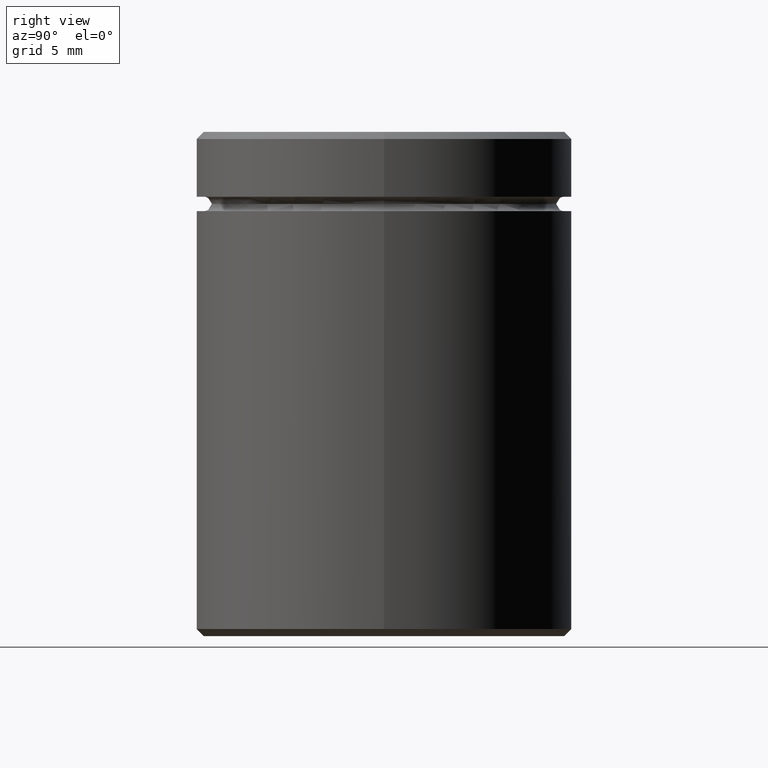
[diagram: clean part render]
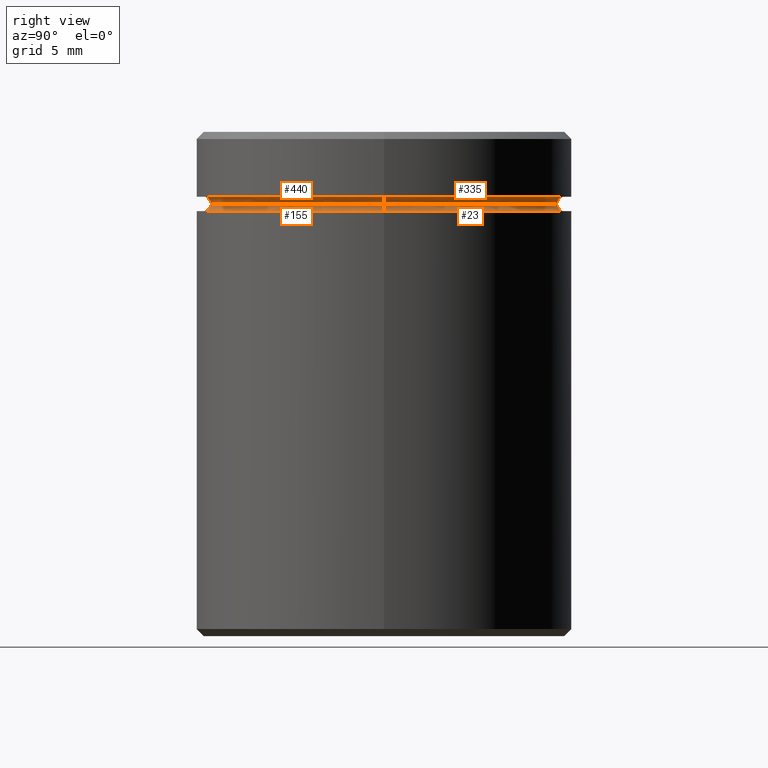
[diagram: same view with one multi-face feature highlighted, each face labeled with its STEP entity id]
A machine part, right view. The highlighted faces form ONE feature: a constant-radius fillet chain: 4 tangent blend faces with common blend radius 0.5 mm. The faces share edges in the B-rep.
Their STEP definitions:
[1] entity #335 (Torus):
#9 = DIRECTION ( 'NONE',  ( 1.000000000000000000, 0.000000000000000000, 0.000000000000000000 ) ) ;
#48 = EDGE_CURVE ( 'NONE', #435, #566, #424, .T. ) ;
#54 = CARTESIAN_POINT ( 'NONE',  ( 0.000000000000000000, 0.000000000000000000, -4.999999999999999112 ) ) ;
#62 = VERTEX_POINT ( 'NONE', #516 ) ;
#65 = DIRECTION ( 'NONE',  ( 0.000000000000000000, 0.000000000000000000, -1.000000000000000000 ) ) ;
#71 = DIRECTION ( 'NONE',  ( -1.000000000000000000, 0.000000000000000000, 0.000000000000000000 ) ) ;
#109 = DIRECTION ( 'NONE',  ( -0.000000000000000000, -0.000000000000000000, 1.000000000000000000 ) ) ;
#111 = ORIENTED_EDGE ( 'NONE', *, *, #167, .F. ) ;
#119 = DIRECTION ( 'NONE',  ( -0.000000000000000000, -1.000000000000000000, -0.000000000000000000 ) ) ;
#167 = EDGE_CURVE ( 'NONE', #62, #537, #308, .T. ) ;
#177 = EDGE_LOOP ( 'NONE', ( #346, #256, #274, #111 ) ) ;
#180 = AXIS2_PLACEMENT_3D ( 'NONE', #558, #337, #506 ) ;
#200 = CARTESIAN_POINT ( 'NONE',  ( 12.00000000000000000, 0.000000000000000000, -4.999999999999999112 ) ) ;
#226 = DIRECTION ( 'NONE',  ( -0.000000000000000000, -0.000000000000000000, 1.000000000000000000 ) ) ;
#227 = AXIS2_PLACEMENT_3D ( 'NONE', #499, #65, #237 ) ;
#230 = FACE_OUTER_BOUND ( 'NONE', #177, .T. ) ;
#237 = DIRECTION ( 'NONE',  ( -1.000000000000000000, 0.000000000000000000, 0.000000000000000000 ) ) ;
#256 = ORIENTED_EDGE ( 'NONE', *, *, #48, .T. ) ;
#261 = CARTESIAN_POINT ( 'NONE',  ( -12.50000000000000000, 0.000000000000000000, -4.500000000000000888 ) ) ;
#274 = ORIENTED_EDGE ( 'NONE', *, *, #384, .T. ) ;
#280 = TOROIDAL_SURFACE ( 'NONE', #227, 12.50000000000000000, 0.5000000000000000000 ) ;
#308 = CIRCLE ( 'NONE', #477, 12.50000000000000000 ) ;
#330 = CARTESIAN_POINT ( 'NONE',  ( -12.50000000000000000, 0.000000000000000000, -5.000000000000000888 ) ) ;
#334 = CARTESIAN_POINT ( 'NONE',  ( -12.00000000000000000, 1.500192328955507734E-15, -4.999999999999999112 ) ) ;
#335 = ADVANCED_FACE ( 'NONE', ( #230 ), #280, .F. ) ;
#337 = DIRECTION ( 'NONE',  ( -1.224646799147353207E-16, 1.000000000000000000, 0.000000000000000000 ) ) ;
#346 = ORIENTED_EDGE ( 'NONE', *, *, #377, .F. ) ;
#350 = AXIS2_PLACEMENT_3D ( 'NONE', #330, #119, #555 ) ;
#377 = EDGE_CURVE ( 'NONE', #435, #62, #528, .T. ) ;
#384 = EDGE_CURVE ( 'NONE', #566, #537, #416, .T. ) ;
#385 = AXIS2_PLACEMENT_3D ( 'NONE', #54, #226, #9 ) ;
#416 = CIRCLE ( 'NONE', #350, 0.5000000000000004441 ) ;
#424 = CIRCLE ( 'NONE', #385, 12.00000000000000000 ) ;
#435 = VERTEX_POINT ( 'NONE', #200 ) ;
#466 = CARTESIAN_POINT ( 'NONE',  ( 0.000000000000000000, 0.000000000000000000, -4.500000000000000888 ) ) ;
#477 = AXIS2_PLACEMENT_3D ( 'NONE', #466, #109, #71 ) ;
#499 = CARTESIAN_POINT ( 'NONE',  ( 0.000000000000000000, 0.000000000000000000, -5.000000000000000888 ) ) ;
#506 = DIRECTION ( 'NONE',  ( -1.000000000000000000, -1.224646799147353454E-16, 0.000000000000000000 ) ) ;
#516 = CARTESIAN_POINT ( 'NONE',  ( 12.50000000000000000, 1.530808498934191521E-15, -4.500000000000000888 ) ) ;
#528 = CIRCLE ( 'NONE', #180, 0.5000000000000004441 ) ;
#537 = VERTEX_POINT ( 'NONE', #261 ) ;
#555 = DIRECTION ( 'NONE',  ( 0.000000000000000000, 0.000000000000000000, -1.000000000000000000 ) ) ;
#558 = CARTESIAN_POINT ( 'NONE',  ( 12.50000000000000000, 1.530808498934191521E-15, -5.000000000000000888 ) ) ;
#566 = VERTEX_POINT ( 'NONE', #334 ) ;
[2] entity #23 (Torus):
#9 = DIRECTION ( 'NONE',  ( 1.000000000000000000, 0.000000000000000000, 0.000000000000000000 ) ) ;
#12 = DIRECTION ( 'NONE',  ( -0.000000000000000000, -0.000000000000000000, 1.000000000000000000 ) ) ;
#23 = ADVANCED_FACE ( 'NONE', ( #187 ), #553, .F. ) ;
#26 = CIRCLE ( 'NONE', #327, 0.5000000000000004441 ) ;
#27 = CARTESIAN_POINT ( 'NONE',  ( 12.50000000000000000, 0.000000000000000000, -4.999999999999999112 ) ) ;
#48 = EDGE_CURVE ( 'NONE', #435, #566, #424, .T. ) ;
#54 = CARTESIAN_POINT ( 'NONE',  ( 0.000000000000000000, 0.000000000000000000, -4.999999999999999112 ) ) ;
#69 = ORIENTED_EDGE ( 'NONE', *, *, #48, .F. ) ;
#80 = DIRECTION ( 'NONE',  ( 0.000000000000000000, 0.000000000000000000, -1.000000000000000000 ) ) ;
#106 = CARTESIAN_POINT ( 'NONE',  ( 12.50000000000000000, 0.000000000000000000, -5.500000000000000000 ) ) ;
#140 = DIRECTION ( 'NONE',  ( 1.000000000000000000, 0.000000000000000000, 0.000000000000000000 ) ) ;
#143 = EDGE_CURVE ( 'NONE', #241, #482, #512, .T. ) ;
#165 = ORIENTED_EDGE ( 'NONE', *, *, #524, .F. ) ;
#187 = FACE_OUTER_BOUND ( 'NONE', #211, .T. ) ;
#200 = CARTESIAN_POINT ( 'NONE',  ( 12.00000000000000000, 0.000000000000000000, -4.999999999999999112 ) ) ;
#208 = CARTESIAN_POINT ( 'NONE',  ( 0.000000000000000000, 0.000000000000000000, -5.500000000000000000 ) ) ;
#211 = EDGE_LOOP ( 'NONE', ( #165, #69, #441, #325 ) ) ;
#226 = DIRECTION ( 'NONE',  ( -0.000000000000000000, -0.000000000000000000, 1.000000000000000000 ) ) ;
#241 = VERTEX_POINT ( 'NONE', #267 ) ;
#254 = DIRECTION ( 'NONE',  ( 0.000000000000000000, -1.000000000000000000, 0.000000000000000000 ) ) ;
#267 = CARTESIAN_POINT ( 'NONE',  ( -12.50000000000000000, 1.530808498934191521E-15, -5.500000000000000000 ) ) ;
#283 = CARTESIAN_POINT ( 'NONE',  ( 0.000000000000000000, 0.000000000000000000, -4.999999999999999112 ) ) ;
#325 = ORIENTED_EDGE ( 'NONE', *, *, #143, .F. ) ;
#327 = AXIS2_PLACEMENT_3D ( 'NONE', #27, #254, #80 ) ;
#334 = CARTESIAN_POINT ( 'NONE',  ( -12.00000000000000000, 1.500192328955507734E-15, -4.999999999999999112 ) ) ;
#373 = EDGE_CURVE ( 'NONE', #435, #482, #26, .T. ) ;
#385 = AXIS2_PLACEMENT_3D ( 'NONE', #54, #226, #9 ) ;
#424 = CIRCLE ( 'NONE', #385, 12.00000000000000000 ) ;
#428 = DIRECTION ( 'NONE',  ( -1.000000000000000000, 1.224646799147353454E-16, 0.000000000000000000 ) ) ;
#435 = VERTEX_POINT ( 'NONE', #200 ) ;
#441 = ORIENTED_EDGE ( 'NONE', *, *, #373, .T. ) ;
#445 = DIRECTION ( 'NONE',  ( 1.000000000000000000, 0.000000000000000000, 0.000000000000000000 ) ) ;
#469 = AXIS2_PLACEMENT_3D ( 'NONE', #208, #487, #140 ) ;
#474 = CARTESIAN_POINT ( 'NONE',  ( -12.50000000000000000, 1.530808498934191521E-15, -4.999999999999999112 ) ) ;
#482 = VERTEX_POINT ( 'NONE', #106 ) ;
#487 = DIRECTION ( 'NONE',  ( 0.000000000000000000, 0.000000000000000000, -1.000000000000000000 ) ) ;
#492 = AXIS2_PLACEMENT_3D ( 'NONE', #474, #511, #428 ) ;
#511 = DIRECTION ( 'NONE',  ( 1.224646799147353207E-16, 1.000000000000000000, 0.000000000000000000 ) ) ;
#512 = CIRCLE ( 'NONE', #469, 12.50000000000000000 ) ;
#524 = EDGE_CURVE ( 'NONE', #566, #241, #565, .T. ) ;
#538 = AXIS2_PLACEMENT_3D ( 'NONE', #283, #12, #445 ) ;
#553 = TOROIDAL_SURFACE ( 'NONE', #538, 12.50000000000000000, 0.5000000000000000000 ) ;
#565 = CIRCLE ( 'NONE', #492, 0.5000000000000004441 ) ;
#566 = VERTEX_POINT ( 'NONE', #334 ) ;
[3] entity #155 (Torus):
#15 = DIRECTION ( 'NONE',  ( 1.000000000000000000, 0.000000000000000000, 0.000000000000000000 ) ) ;
#26 = CIRCLE ( 'NONE', #327, 0.5000000000000004441 ) ;
#27 = CARTESIAN_POINT ( 'NONE',  ( 12.50000000000000000, 0.000000000000000000, -4.999999999999999112 ) ) ;
#29 = CARTESIAN_POINT ( 'NONE',  ( 0.000000000000000000, 0.000000000000000000, -5.500000000000000000 ) ) ;
#80 = DIRECTION ( 'NONE',  ( 0.000000000000000000, 0.000000000000000000, -1.000000000000000000 ) ) ;
#106 = CARTESIAN_POINT ( 'NONE',  ( 12.50000000000000000, 0.000000000000000000, -5.500000000000000000 ) ) ;
#138 = CIRCLE ( 'NONE', #484, 12.00000000000000000 ) ;
#153 = DIRECTION ( 'NONE',  ( -0.000000000000000000, -0.000000000000000000, 1.000000000000000000 ) ) ;
#155 = ADVANCED_FACE ( 'NONE', ( #493 ), #539, .F. ) ;
#198 = EDGE_LOOP ( 'NONE', ( #225, #219, #567, #270 ) ) ;
#200 = CARTESIAN_POINT ( 'NONE',  ( 12.00000000000000000, 0.000000000000000000, -4.999999999999999112 ) ) ;
#205 = AXIS2_PLACEMENT_3D ( 'NONE', #498, #153, #507 ) ;
#219 = ORIENTED_EDGE ( 'NONE', *, *, #524, .T. ) ;
#225 = ORIENTED_EDGE ( 'NONE', *, *, #472, .F. ) ;
#241 = VERTEX_POINT ( 'NONE', #267 ) ;
#245 = CARTESIAN_POINT ( 'NONE',  ( 0.000000000000000000, 0.000000000000000000, -4.999999999999999112 ) ) ;
#254 = DIRECTION ( 'NONE',  ( 0.000000000000000000, -1.000000000000000000, 0.000000000000000000 ) ) ;
#267 = CARTESIAN_POINT ( 'NONE',  ( -12.50000000000000000, 1.530808498934191521E-15, -5.500000000000000000 ) ) ;
#270 = ORIENTED_EDGE ( 'NONE', *, *, #373, .F. ) ;
#284 = DIRECTION ( 'NONE',  ( -0.000000000000000000, -0.000000000000000000, 1.000000000000000000 ) ) ;
#296 = DIRECTION ( 'NONE',  ( 0.000000000000000000, 0.000000000000000000, -1.000000000000000000 ) ) ;
#321 = AXIS2_PLACEMENT_3D ( 'NONE', #29, #296, #376 ) ;
#327 = AXIS2_PLACEMENT_3D ( 'NONE', #27, #254, #80 ) ;
#334 = CARTESIAN_POINT ( 'NONE',  ( -12.00000000000000000, 1.500192328955507734E-15, -4.999999999999999112 ) ) ;
#351 = CIRCLE ( 'NONE', #321, 12.50000000000000000 ) ;
#373 = EDGE_CURVE ( 'NONE', #435, #482, #26, .T. ) ;
#376 = DIRECTION ( 'NONE',  ( 1.000000000000000000, 0.000000000000000000, 0.000000000000000000 ) ) ;
#428 = DIRECTION ( 'NONE',  ( -1.000000000000000000, 1.224646799147353454E-16, 0.000000000000000000 ) ) ;
#435 = VERTEX_POINT ( 'NONE', #200 ) ;
#472 = EDGE_CURVE ( 'NONE', #566, #435, #138, .T. ) ;
#474 = CARTESIAN_POINT ( 'NONE',  ( -12.50000000000000000, 1.530808498934191521E-15, -4.999999999999999112 ) ) ;
#482 = VERTEX_POINT ( 'NONE', #106 ) ;
#484 = AXIS2_PLACEMENT_3D ( 'NONE', #245, #284, #15 ) ;
#492 = AXIS2_PLACEMENT_3D ( 'NONE', #474, #511, #428 ) ;
#493 = FACE_OUTER_BOUND ( 'NONE', #198, .T. ) ;
#498 = CARTESIAN_POINT ( 'NONE',  ( 0.000000000000000000, 0.000000000000000000, -4.999999999999999112 ) ) ;
#507 = DIRECTION ( 'NONE',  ( 1.000000000000000000, 0.000000000000000000, 0.000000000000000000 ) ) ;
#511 = DIRECTION ( 'NONE',  ( 1.224646799147353207E-16, 1.000000000000000000, 0.000000000000000000 ) ) ;
#524 = EDGE_CURVE ( 'NONE', #566, #241, #565, .T. ) ;
#534 = EDGE_CURVE ( 'NONE', #482, #241, #351, .T. ) ;
#539 = TOROIDAL_SURFACE ( 'NONE', #205, 12.50000000000000000, 0.5000000000000000000 ) ;
#565 = CIRCLE ( 'NONE', #492, 0.5000000000000004441 ) ;
#566 = VERTEX_POINT ( 'NONE', #334 ) ;
#567 = ORIENTED_EDGE ( 'NONE', *, *, #534, .F. ) ;
[4] entity #440 (Torus):
#3 = ORIENTED_EDGE ( 'NONE', *, *, #377, .T. ) ;
#7 = CARTESIAN_POINT ( 'NONE',  ( 0.000000000000000000, 0.000000000000000000, -4.500000000000000888 ) ) ;
#15 = DIRECTION ( 'NONE',  ( 1.000000000000000000, 0.000000000000000000, 0.000000000000000000 ) ) ;
#17 = TOROIDAL_SURFACE ( 'NONE', #332, 12.50000000000000000, 0.5000000000000000000 ) ;
#55 = AXIS2_PLACEMENT_3D ( 'NONE', #7, #303, #314 ) ;
#62 = VERTEX_POINT ( 'NONE', #516 ) ;
#119 = DIRECTION ( 'NONE',  ( -0.000000000000000000, -1.000000000000000000, -0.000000000000000000 ) ) ;
#138 = CIRCLE ( 'NONE', #484, 12.00000000000000000 ) ;
#180 = AXIS2_PLACEMENT_3D ( 'NONE', #558, #337, #506 ) ;
#200 = CARTESIAN_POINT ( 'NONE',  ( 12.00000000000000000, 0.000000000000000000, -4.999999999999999112 ) ) ;
#235 = EDGE_CURVE ( 'NONE', #537, #62, #251, .T. ) ;
#240 = ORIENTED_EDGE ( 'NONE', *, *, #384, .F. ) ;
#245 = CARTESIAN_POINT ( 'NONE',  ( 0.000000000000000000, 0.000000000000000000, -4.999999999999999112 ) ) ;
#251 = CIRCLE ( 'NONE', #55, 12.50000000000000000 ) ;
#261 = CARTESIAN_POINT ( 'NONE',  ( -12.50000000000000000, 0.000000000000000000, -4.500000000000000888 ) ) ;
#278 = DIRECTION ( 'NONE',  ( -1.000000000000000000, 0.000000000000000000, 0.000000000000000000 ) ) ;
#284 = DIRECTION ( 'NONE',  ( -0.000000000000000000, -0.000000000000000000, 1.000000000000000000 ) ) ;
#287 = CARTESIAN_POINT ( 'NONE',  ( 0.000000000000000000, 0.000000000000000000, -5.000000000000000888 ) ) ;
#303 = DIRECTION ( 'NONE',  ( -0.000000000000000000, -0.000000000000000000, 1.000000000000000000 ) ) ;
#314 = DIRECTION ( 'NONE',  ( -1.000000000000000000, 0.000000000000000000, 0.000000000000000000 ) ) ;
#322 = FACE_OUTER_BOUND ( 'NONE', #324, .T. ) ;
#324 = EDGE_LOOP ( 'NONE', ( #569, #3, #446, #240 ) ) ;
#330 = CARTESIAN_POINT ( 'NONE',  ( -12.50000000000000000, 0.000000000000000000, -5.000000000000000888 ) ) ;
#332 = AXIS2_PLACEMENT_3D ( 'NONE', #287, #463, #278 ) ;
#334 = CARTESIAN_POINT ( 'NONE',  ( -12.00000000000000000, 1.500192328955507734E-15, -4.999999999999999112 ) ) ;
#337 = DIRECTION ( 'NONE',  ( -1.224646799147353207E-16, 1.000000000000000000, 0.000000000000000000 ) ) ;
#350 = AXIS2_PLACEMENT_3D ( 'NONE', #330, #119, #555 ) ;
#377 = EDGE_CURVE ( 'NONE', #435, #62, #528, .T. ) ;
#384 = EDGE_CURVE ( 'NONE', #566, #537, #416, .T. ) ;
#416 = CIRCLE ( 'NONE', #350, 0.5000000000000004441 ) ;
#435 = VERTEX_POINT ( 'NONE', #200 ) ;
#440 = ADVANCED_FACE ( 'NONE', ( #322 ), #17, .F. ) ;
#446 = ORIENTED_EDGE ( 'NONE', *, *, #235, .F. ) ;
#463 = DIRECTION ( 'NONE',  ( 0.000000000000000000, 0.000000000000000000, -1.000000000000000000 ) ) ;
#472 = EDGE_CURVE ( 'NONE', #566, #435, #138, .T. ) ;
#484 = AXIS2_PLACEMENT_3D ( 'NONE', #245, #284, #15 ) ;
#506 = DIRECTION ( 'NONE',  ( -1.000000000000000000, -1.224646799147353454E-16, 0.000000000000000000 ) ) ;
#516 = CARTESIAN_POINT ( 'NONE',  ( 12.50000000000000000, 1.530808498934191521E-15, -4.500000000000000888 ) ) ;
#528 = CIRCLE ( 'NONE', #180, 0.5000000000000004441 ) ;
#537 = VERTEX_POINT ( 'NONE', #261 ) ;
#555 = DIRECTION ( 'NONE',  ( 0.000000000000000000, 0.000000000000000000, -1.000000000000000000 ) ) ;
#558 = CARTESIAN_POINT ( 'NONE',  ( 12.50000000000000000, 1.530808498934191521E-15, -5.000000000000000888 ) ) ;
#566 = VERTEX_POINT ( 'NONE', #334 ) ;
#569 = ORIENTED_EDGE ( 'NONE', *, *, #472, .T. ) ;